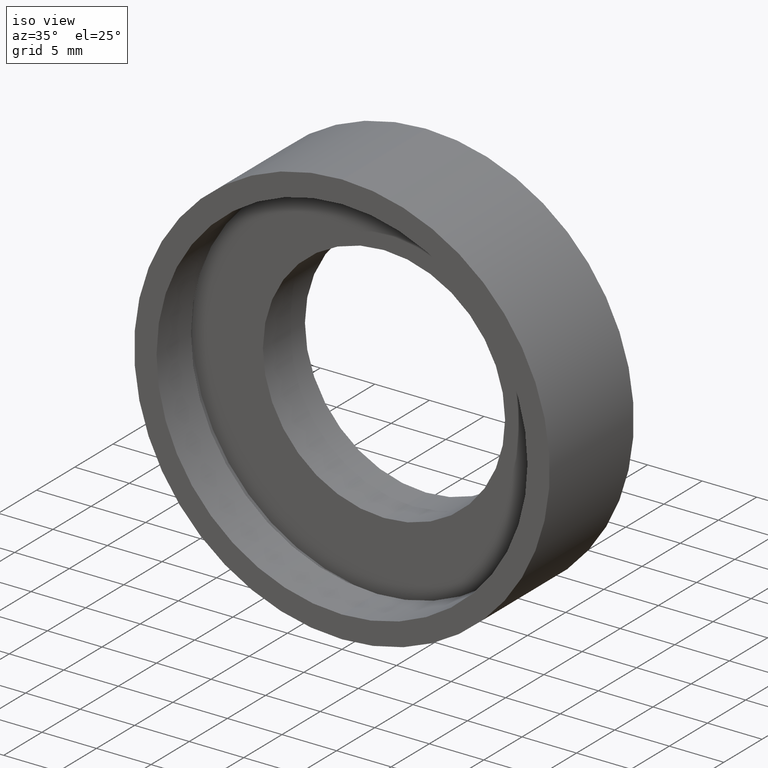
[diagram: clean part render]
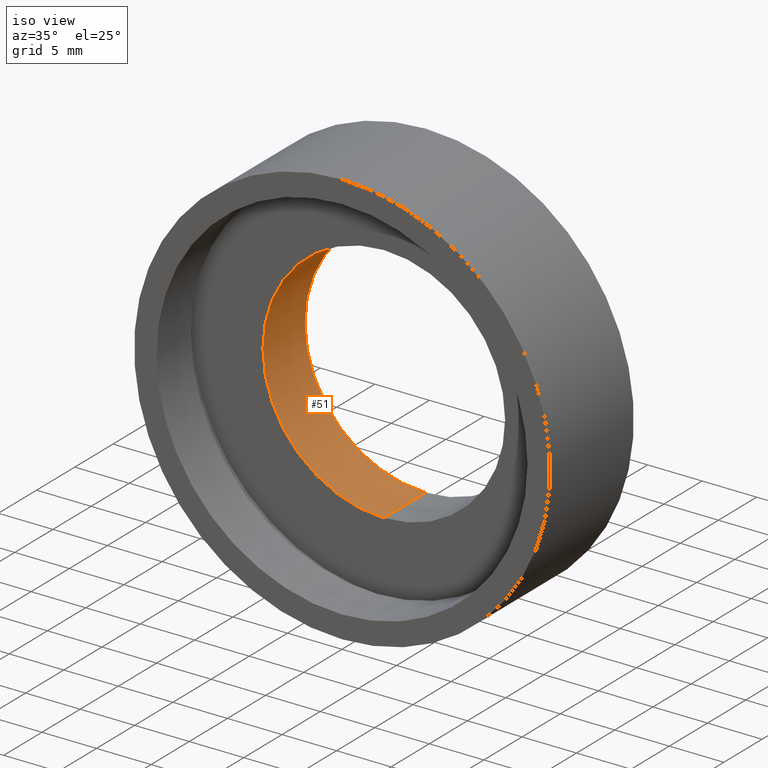
[diagram: same view with one face highlighted and labeled with its STEP entity id]
A machine part, iso view. The second image highlights one B-rep face of the part: STEP entity #51.
In plain terms, the highlighted cylindrical surface (partial cylindrical patch) has radius 11.1 mm, axis along (-0, 1, -0).
Its self-contained STEP definition (entity closure, byte-faithful):
#7 = DIRECTION ( 'NONE',  ( -0.0000000000000000000, 1.000000000000000000, -0.0000000000000000000 ) ) ;
#33 = LINE ( 'NONE', #293, #266 ) ;
#40 = EDGE_CURVE ( 'NONE', #93, #99, #33, .T. ) ;
#41 = AXIS2_PLACEMENT_3D ( 'NONE', #259, #74, #92 ) ;
#48 = CYLINDRICAL_SURFACE ( 'NONE', #286, 11.10000000000000500 ) ;
#51 = ADVANCED_FACE ( 'NONE', ( #335 ), #48, .F. ) ;
#58 = VERTEX_POINT ( 'NONE', #151 ) ;
#66 = VECTOR ( 'NONE', #7, 1000.000000000000000 ) ;
#74 = DIRECTION ( 'NONE',  ( -0.0000000000000000000, 1.000000000000000000, -0.0000000000000000000 ) ) ;
#89 = DIRECTION ( 'NONE',  ( -0.0000000000000000000, 1.000000000000000000, -0.0000000000000000000 ) ) ;
#92 = DIRECTION ( 'NONE',  ( 0.0000000000000000000, 0.0000000000000000000, 1.000000000000000000 ) ) ;
#93 = VERTEX_POINT ( 'NONE', #372 ) ;
#99 = VERTEX_POINT ( 'NONE', #249 ) ;
#112 = EDGE_LOOP ( 'NONE', ( #263, #332, #159, #139 ) ) ;
#132 = DIRECTION ( 'NONE',  ( -0.0000000000000000000, 1.000000000000000000, -0.0000000000000000000 ) ) ;
#137 = CARTESIAN_POINT ( 'NONE',  ( 1.359357947053562700E-015, 5.499999999999998200, -11.10000000000000500 ) ) ;
#139 = ORIENTED_EDGE ( 'NONE', *, *, #40, .F. ) ;
#151 = CARTESIAN_POINT ( 'NONE',  ( 1.359357947053563100E-015, 10.99999999999999600, -11.10000000000000700 ) ) ;
#157 = DIRECTION ( 'NONE',  ( 0.0000000000000000000, 0.0000000000000000000, 1.000000000000000000 ) ) ;
#159 = ORIENTED_EDGE ( 'NONE', *, *, #357, .T. ) ;
#245 = EDGE_CURVE ( 'NONE', #290, #58, #282, .T. ) ;
#249 = CARTESIAN_POINT ( 'NONE',  ( 0.0000000000000000000, 10.99999999999999600, 11.10000000000000700 ) ) ;
#255 = CIRCLE ( 'NONE', #276, 11.10000000000000700 ) ;
#259 = CARTESIAN_POINT ( 'NONE',  ( 0.0000000000000000000, 5.499999999999998200, 0.0000000000000000000 ) ) ;
#263 = ORIENTED_EDGE ( 'NONE', *, *, #394, .F. ) ;
#266 = VECTOR ( 'NONE', #132, 1000.000000000000000 ) ;
#276 = AXIS2_PLACEMENT_3D ( 'NONE', #309, #89, #157 ) ;
#282 = LINE ( 'NONE', #434, #66 ) ;
#286 = AXIS2_PLACEMENT_3D ( 'NONE', #400, #412, #367 ) ;
#290 = VERTEX_POINT ( 'NONE', #137 ) ;
#293 = CARTESIAN_POINT ( 'NONE',  ( 0.0000000000000000000, 60.02082041425541100, 11.10000000000000500 ) ) ;
#309 = CARTESIAN_POINT ( 'NONE',  ( 0.0000000000000000000, 10.99999999999999600, 0.0000000000000000000 ) ) ;
#332 = ORIENTED_EDGE ( 'NONE', *, *, #245, .T. ) ;
#335 = FACE_OUTER_BOUND ( 'NONE', #112, .T. ) ;
#357 = EDGE_CURVE ( 'NONE', #58, #99, #255, .T. ) ;
#367 = DIRECTION ( 'NONE',  ( 0.0000000000000000000, 0.0000000000000000000, 1.000000000000000000 ) ) ;
#372 = CARTESIAN_POINT ( 'NONE',  ( 0.0000000000000000000, 5.499999999999998200, 11.10000000000000500 ) ) ;
#379 = CIRCLE ( 'NONE', #41, 11.10000000000000500 ) ;
#394 = EDGE_CURVE ( 'NONE', #290, #93, #379, .T. ) ;
#400 = CARTESIAN_POINT ( 'NONE',  ( 0.0000000000000000000, 60.02082041425541100, 0.0000000000000000000 ) ) ;
#412 = DIRECTION ( 'NONE',  ( -0.0000000000000000000, 1.000000000000000000, -0.0000000000000000000 ) ) ;
#434 = CARTESIAN_POINT ( 'NONE',  ( 1.359357947053562700E-015, 60.02082041425541100, -11.10000000000000500 ) ) ;